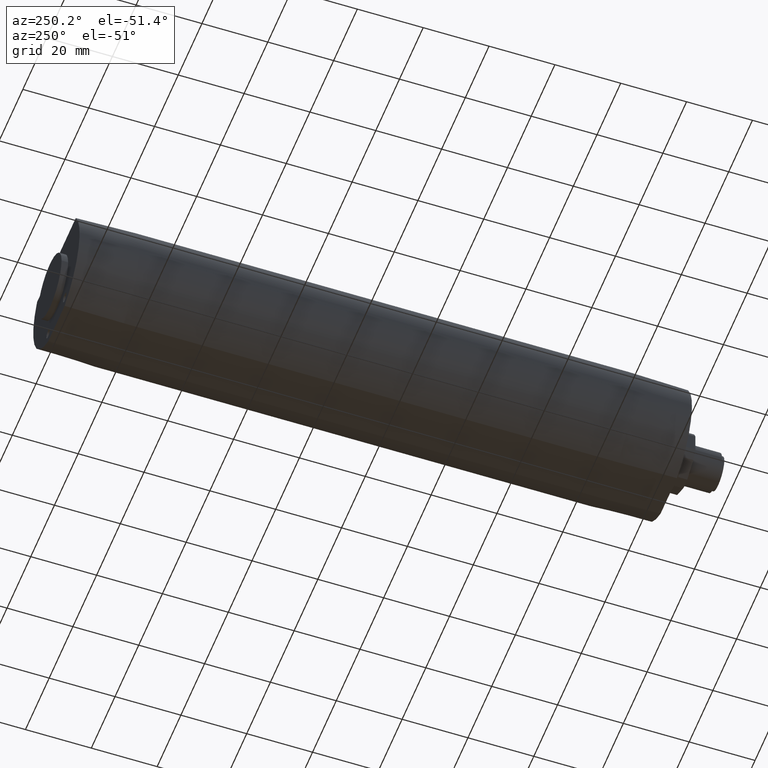
[diagram: clean part render]
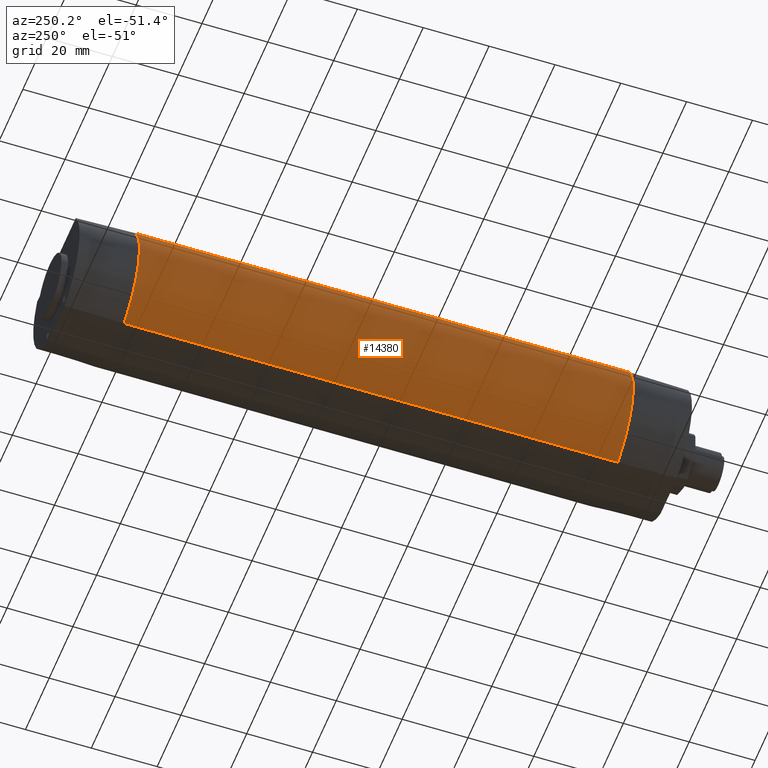
[diagram: same view with one face highlighted and labeled with its STEP entity id]
A machine part, auxiliary view. The second image highlights one B-rep face of the part: STEP entity #14380.
In plain terms, the highlighted cylindrical surface (partial cylindrical patch) has radius 20 mm, axis along (0, 1, -0).
Its self-contained STEP definition (entity closure, byte-faithful):
#13380=CARTESIAN_POINT('',(6.95970545353752,-18.75,-74.9999999999999));
#13390=VERTEX_POINT('',#13380);
#13860=CARTESIAN_POINT('',(6.95970545353752,-18.75,75.));
#13870=VERTEX_POINT('',#13860);
#13900=CARTESIAN_POINT('',(6.95970545353759,-18.75,-75.4999999999999));
#13910=DIRECTION('',(0.,0.,-1.));
#13920=VECTOR('',#13910,1.);
#13930=LINE('',#13900,#13920);
#13940=EDGE_CURVE('',#13870,#13390,#13930,.T.);
#14060=CARTESIAN_POINT('',(-4.44089209850063E-14,-3.5527136788005E-15,
-75.4999999999999));
#14070=DIRECTION('',(0.,0.,1.));
#14080=DIRECTION('',(1.,0.,0.));
#14090=AXIS2_PLACEMENT_3D('',#14060,#14070,#14080);
#14100=CYLINDRICAL_SURFACE('',#14090,20.);
#14110=CARTESIAN_POINT('',(-5.69743333006917E-15,1.75599164270057E-15,
-74.9999999999736));
#14120=DIRECTION('',(2.67861795197786E-16,-3.53406135405247E-16,-1.));
#14130=DIRECTION('',(1.,9.46640018635614E-32,2.67861795197786E-16));
#14140=AXIS2_PLACEMENT_3D('',#14110,#14120,#14130);
#14150=CIRCLE('',#14140,20.0000000000003);
#14160=CARTESIAN_POINT('',(16.5698521417664,11.2,-74.9999999999999));
#14170=VERTEX_POINT('',#14160);
#14180=EDGE_CURVE('',#14170,#13390,#14150,.T.);
#14190=ORIENTED_EDGE('',*,*,#14180,.F.);
#14200=ORIENTED_EDGE('',*,*,#13940,.T.);
#14210=CARTESIAN_POINT('',(-5.39975551799169E-14,-1.12440856692483E-13,
75.0000000000269));
#14220=DIRECTION('',(1.23496678478392E-15,3.81502863814771E-15,1.));
#14230=DIRECTION('',(1.,-4.71143365111188E-30,-1.23496678478392E-15));
#14240=AXIS2_PLACEMENT_3D('',#14210,#14220,#14230);
#14250=CIRCLE('',#14240,19.9999999999997);
#14260=CARTESIAN_POINT('',(16.5698521417664,11.2,75.));
#14270=VERTEX_POINT('',#14260);
#14280=EDGE_CURVE('',#13870,#14270,#14250,.T.);
#14290=ORIENTED_EDGE('',*,*,#14280,.F.);
#14300=CARTESIAN_POINT('',(16.5698521417664,11.2,-75.4999999999999));
#14310=DIRECTION('',(0.,0.,1.));
#14320=VECTOR('',#14310,1.);
#14330=LINE('',#14300,#14320);
#14340=EDGE_CURVE('',#14170,#14270,#14330,.T.);
#14350=ORIENTED_EDGE('',*,*,#14340,.T.);
#14360=EDGE_LOOP('',(#14350,#14290,#14200,#14190));
#14370=FACE_OUTER_BOUND('',#14360,.T.);
#14380=ADVANCED_FACE('',(#14370),#14100,.T.);